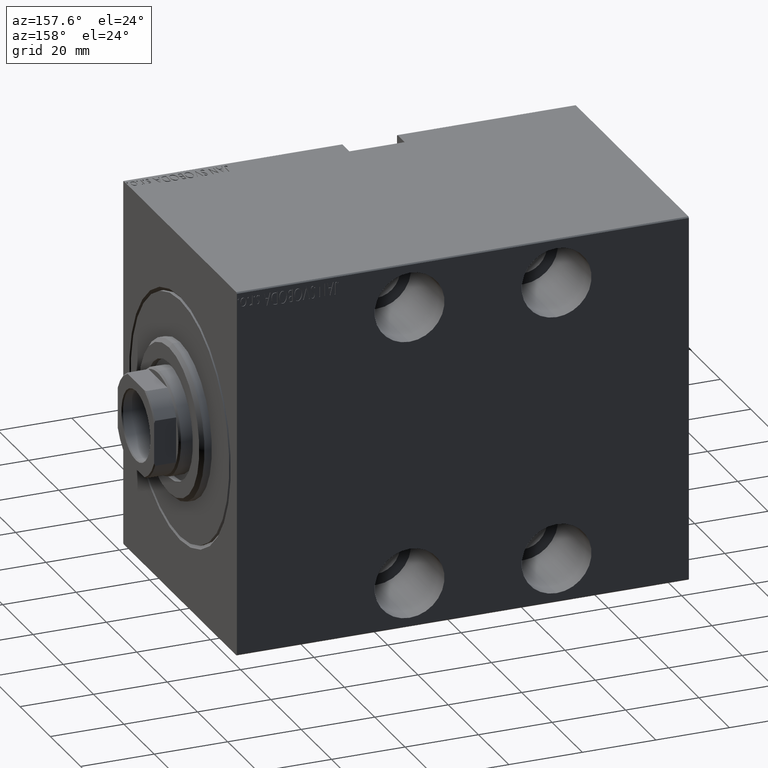
[diagram: clean part render]
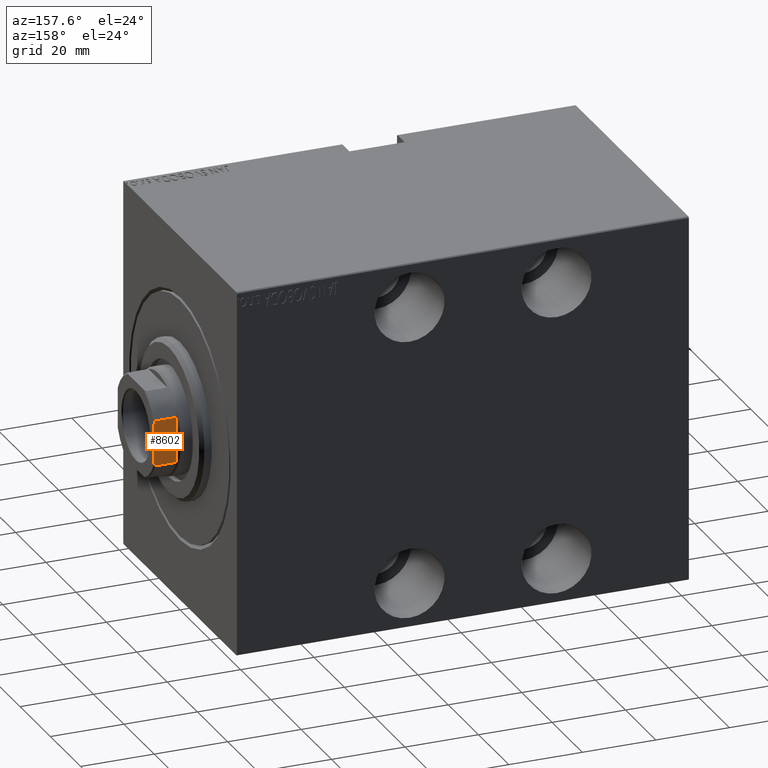
[diagram: same view with one face highlighted and labeled with its STEP entity id]
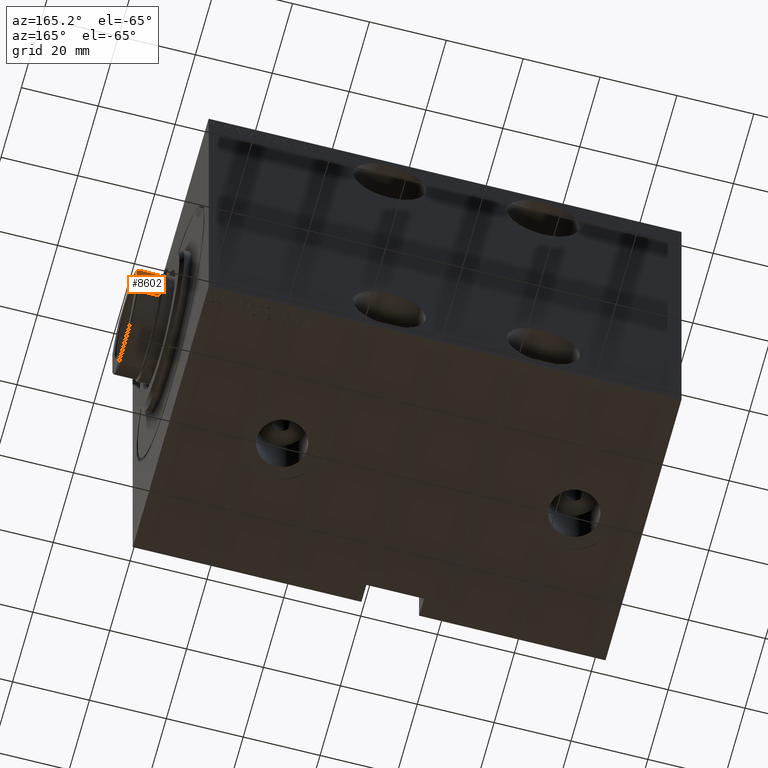
[diagram: same view with one face highlighted and labeled with its STEP entity id]
A machine part, auxiliary view. The second image highlights one B-rep face of the part: STEP entity #8602.
A second angle (auxiliary view) of the same face is appended — the face is thin or edge-on in the first view.
In plain terms, the highlighted planar face has unit normal (0, -1, -0).
Its self-contained STEP definition (entity closure, byte-faithful):
#1437 = ORIENTED_EDGE ( 'NONE', *, *, #41634, .T. ) ;
#1678 = VERTEX_POINT ( 'NONE', #35866 ) ;
#4163 = VECTOR ( 'NONE', #38995, 1000.000000000000000 ) ;
#4891 = ORIENTED_EDGE ( 'NONE', *, *, #42718, .F. ) ;
#4932 = DIRECTION ( 'NONE',  ( 0.000000000000000000, -0.000000000000000000, -1.000000000000000000 ) ) ;
#5485 = CARTESIAN_POINT ( 'NONE',  ( 6.184658438426500204, 11.99999999999999822, 120.7000000000000171 ) ) ;
#5954 = B_SPLINE_CURVE_WITH_KNOTS ( 'NONE', 3,
 ( #10439, #26992, #33321, #24148 ),
 .UNSPECIFIED., .F., .F.,
 ( 4, 4 ),
 ( 0.000000000000000000, 0.0007483334419305881589 ),
 .UNSPECIFIED. ) ;
#6292 = CARTESIAN_POINT ( 'NONE',  ( -5.729389212963511113, 11.99999999999999645, 120.9040582041574368 ) ) ;
#7279 = LINE ( 'NONE', #16444, #30046 ) ;
#7778 = DIRECTION ( 'NONE',  ( 0.000000000000000000, -1.000000000000000000, 0.000000000000000000 ) ) ;
#8602 = ADVANCED_FACE ( 'NONE', ( #37220 ), #21509, .F. ) ;
#9158 = CARTESIAN_POINT ( 'NONE',  ( -5.499090833947114731, 11.99999999999999645, 121.0000000000000142 ) ) ;
#9665 = AXIS2_PLACEMENT_3D ( 'NONE', #14312, #7778, #4932 ) ;
#10439 = CARTESIAN_POINT ( 'NONE',  ( 5.499090833947055224, 11.99999999999999645, 121.0000000000000142 ) ) ;
#12677 = EDGE_CURVE ( 'NONE', #24038, #16126, #5954, .T. ) ;
#12958 = VECTOR ( 'NONE', #25163, 1000.000000000000000 ) ;
#14312 = CARTESIAN_POINT ( 'NONE',  ( -12.00000000000000355, 11.99999999999999645, 121.0000000000000142 ) ) ;
#14434 = ORIENTED_EDGE ( 'NONE', *, *, #17316, .F. ) ;
#16126 = VERTEX_POINT ( 'NONE', #5485 ) ;
#16444 = CARTESIAN_POINT ( 'NONE',  ( 6.184658438426500204, 11.99999999999999822, -0.001000000000001000089 ) ) ;
#17316 = EDGE_CURVE ( 'NONE', #22152, #16126, #7279, .T. ) ;
#18942 = LINE ( 'NONE', #21562, #4163 ) ;
#19454 = CARTESIAN_POINT ( 'NONE',  ( -6.184658438426501093, 11.99999999999999645, 120.7000000000000597 ) ) ;
#21509 = PLANE ( 'NONE',  #9665 ) ;
#21562 = CARTESIAN_POINT ( 'NONE',  ( -12.00000000000000355, 11.99999999999999645, 121.0000000000000142 ) ) ;
#22152 = VERTEX_POINT ( 'NONE', #35838 ) ;
#22334 = EDGE_CURVE ( 'NONE', #22152, #35269, #38476, .T. ) ;
#22496 = B_SPLINE_CURVE_WITH_KNOTS ( 'NONE', 3,
 ( #29415, #22858, #6292, #9158 ),
 .UNSPECIFIED., .F., .F.,
 ( 4, 4 ),
 ( 0.000000000000000000, 0.0007483334419305182278 ),
 .UNSPECIFIED. ) ;
#22858 = CARTESIAN_POINT ( 'NONE',  ( -5.957846001622752574, 11.99999999999999645, 120.8039079593495586 ) ) ;
#23159 = EDGE_CURVE ( 'NONE', #26388, #1678, #22496, .T. ) ;
#24038 = VERTEX_POINT ( 'NONE', #26345 ) ;
#24148 = CARTESIAN_POINT ( 'NONE',  ( 6.184658438426500204, 11.99999999999999822, 120.7000000000000171 ) ) ;
#25163 = DIRECTION ( 'NONE',  ( -1.000000000000000000, -0.000000000000000000, -0.000000000000000000 ) ) ;
#26345 = CARTESIAN_POINT ( 'NONE',  ( 5.499090833947055224, 11.99999999999999645, 121.0000000000000142 ) ) ;
#26388 = VERTEX_POINT ( 'NONE', #19454 ) ;
#26992 = CARTESIAN_POINT ( 'NONE',  ( 5.729389212963474698, 11.99999999999999645, 120.9040582041574226 ) ) ;
#29415 = CARTESIAN_POINT ( 'NONE',  ( -6.184658438426501093, 11.99999999999999645, 120.7000000000000597 ) ) ;
#30046 = VECTOR ( 'NONE', #33879, 1000.000000000000000 ) ;
#32057 = CARTESIAN_POINT ( 'NONE',  ( -6.184658438426501093, 11.99999999999999645, -0.001000000000001000089 ) ) ;
#32126 = VECTOR ( 'NONE', #42099, 1000.000000000000000 ) ;
#33321 = CARTESIAN_POINT ( 'NONE',  ( 5.957846001622730370, 11.99999999999999645, 120.8039079593495302 ) ) ;
#33469 = ORIENTED_EDGE ( 'NONE', *, *, #23159, .T. ) ;
#33879 = DIRECTION ( 'NONE',  ( -0.000000000000000000, -0.000000000000000000, 1.000000000000000000 ) ) ;
#34112 = EDGE_LOOP ( 'NONE', ( #4891, #36906, #14434, #41752, #1437, #33469 ) ) ;
#34991 = CARTESIAN_POINT ( 'NONE',  ( -12.00000000000000355, 11.99999999999999645, 115.0000000000000000 ) ) ;
#35269 = VERTEX_POINT ( 'NONE', #35687 ) ;
#35687 = CARTESIAN_POINT ( 'NONE',  ( -6.184658438426498428, 11.99999999999999645, 115.0000000000000142 ) ) ;
#35758 = LINE ( 'NONE', #32057, #32126 ) ;
#35838 = CARTESIAN_POINT ( 'NONE',  ( 6.184658438426499316, 11.99999999999999645, 115.0000000000000142 ) ) ;
#35866 = CARTESIAN_POINT ( 'NONE',  ( -5.499090833947114731, 11.99999999999999645, 121.0000000000000142 ) ) ;
#36906 = ORIENTED_EDGE ( 'NONE', *, *, #12677, .T. ) ;
#37220 = FACE_OUTER_BOUND ( 'NONE', #34112, .T. ) ;
#38476 = LINE ( 'NONE', #34991, #12958 ) ;
#38995 = DIRECTION ( 'NONE',  ( -1.000000000000000000, -0.000000000000000000, -0.000000000000000000 ) ) ;
#41634 = EDGE_CURVE ( 'NONE', #35269, #26388, #35758, .T. ) ;
#41752 = ORIENTED_EDGE ( 'NONE', *, *, #22334, .T. ) ;
#42099 = DIRECTION ( 'NONE',  ( -0.000000000000000000, -0.000000000000000000, 1.000000000000000000 ) ) ;
#42718 = EDGE_CURVE ( 'NONE', #24038, #1678, #18942, .T. ) ;